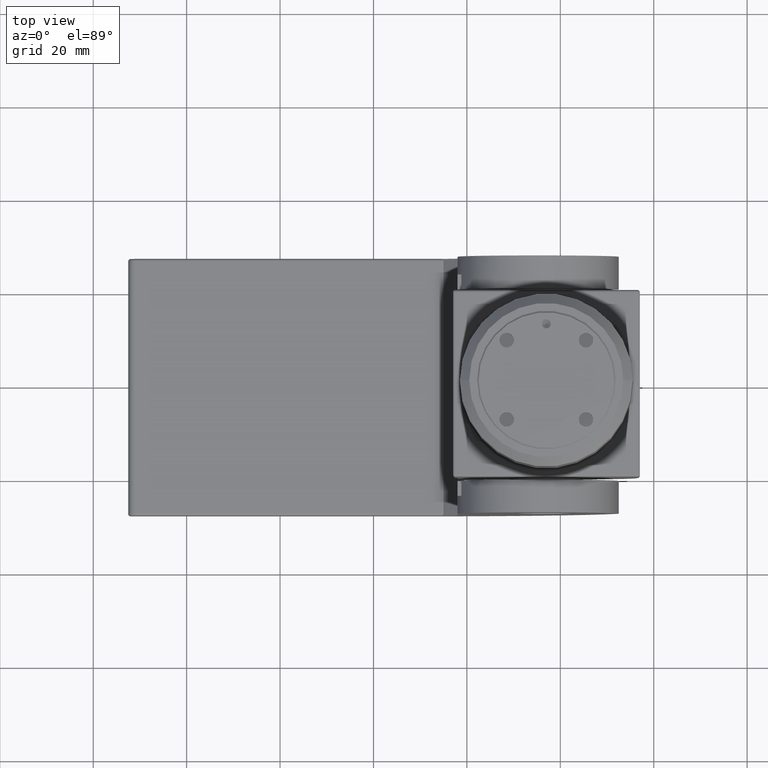
[diagram: clean part render]
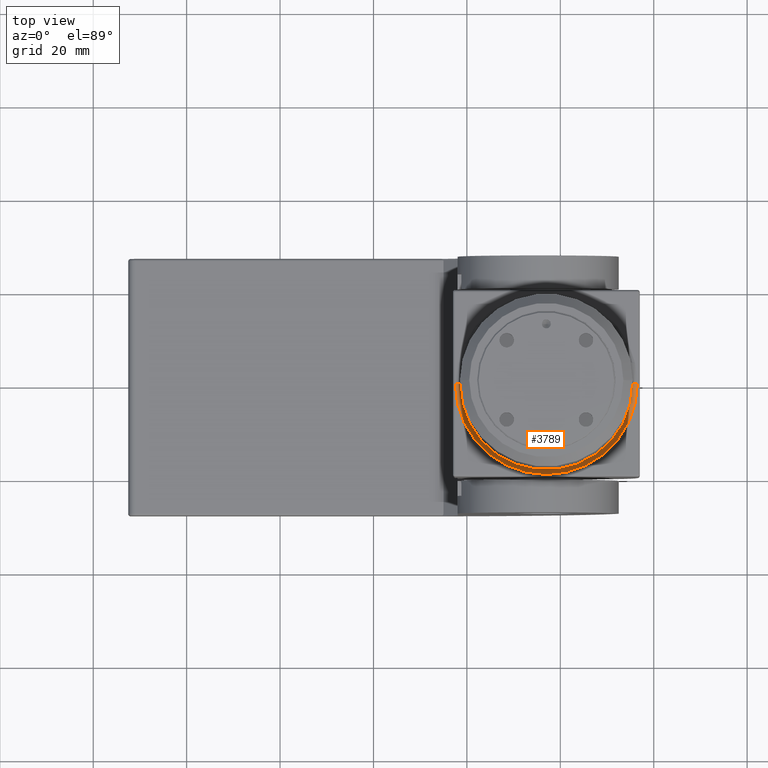
[diagram: same view with one face highlighted and labeled with its STEP entity id]
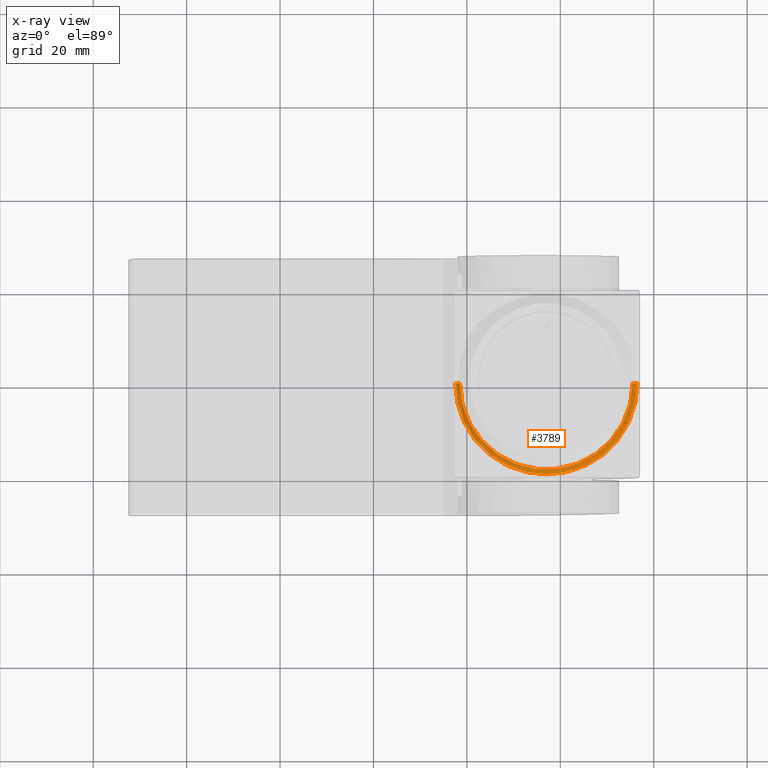
[diagram: x-ray of the same camera — body ghosted, the highlighted face saturated]
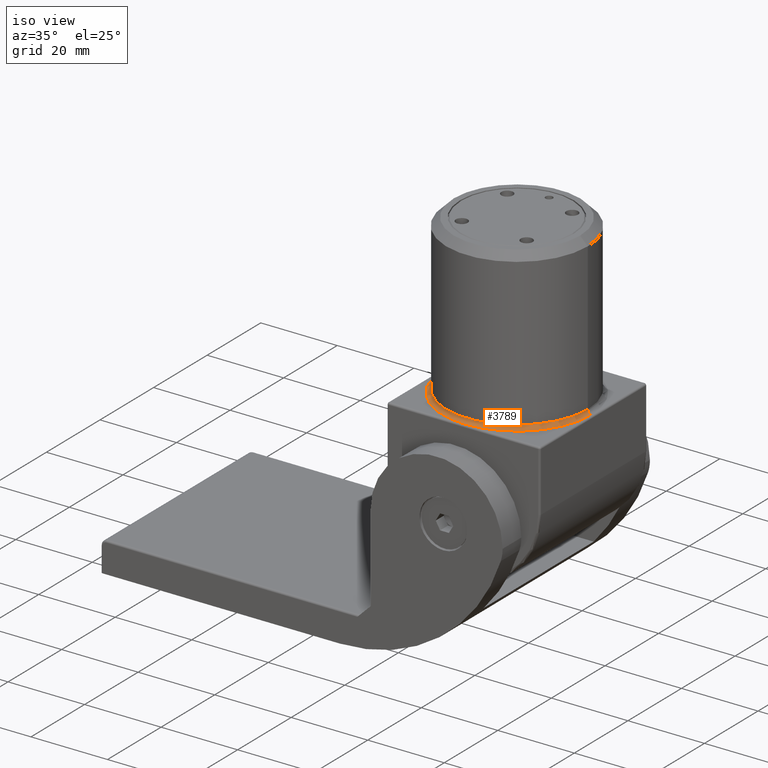
[diagram: same view with one face highlighted and labeled with its STEP entity id]
A machine part, top view. The second image highlights one B-rep face of the part: STEP entity #3789.
The next image is the same camera in x-ray: the body ghosted, the highlighted face saturated — about 0% of this face is hidden behind the body in this view.
A second angle (iso view) of the same face is appended — the face is thin or edge-on in the first view.
In plain terms, the highlighted toroidal blend (fillet) surface has major radius 19.5 mm and minor (blend) radius 1 mm.
Its self-contained STEP definition (entity closure, byte-faithful):
#21 = CARTESIAN_POINT ( 'NONE',  ( 0.000000000000000000, 0.000000000000000000, 0.000000000000000000 ) ) ;
#508 = CIRCLE ( 'NONE', #1918, 19.50000000000000000 ) ;
#533 = ORIENTED_EDGE ( 'NONE', *, *, #12631, .F. ) ;
#781 = CIRCLE ( 'NONE', #16722, 1.000000000000000888 ) ;
#879 = VERTEX_POINT ( 'NONE', #17901 ) ;
#926 = FACE_OUTER_BOUND ( 'NONE', #6901, .T. ) ;
#1873 = AXIS2_PLACEMENT_3D ( 'NONE', #20569, #22290, #20497 ) ;
#1918 = AXIS2_PLACEMENT_3D ( 'NONE', #21188, #2713, #7338 ) ;
#2034 = DIRECTION ( 'NONE',  ( 0.000000000000000000, 0.000000000000000000, -1.000000000000000000 ) ) ;
#2282 = VERTEX_POINT ( 'NONE', #8896 ) ;
#2337 = VERTEX_POINT ( 'NONE', #12582 ) ;
#2713 = DIRECTION ( 'NONE',  ( 0.000000000000000000, 0.000000000000000000, -1.000000000000000000 ) ) ;
#3789 = ADVANCED_FACE ( 'NONE', ( #926 ), #14163, .F. ) ;
#3926 = CARTESIAN_POINT ( 'NONE',  ( 19.50000000000000000, 2.388061258337338939E-15, 1.000000000000000888 ) ) ;
#4155 = ORIENTED_EDGE ( 'NONE', *, *, #21130, .F. ) ;
#6587 = VERTEX_POINT ( 'NONE', #20341 ) ;
#6742 = AXIS2_PLACEMENT_3D ( 'NONE', #21, #2034, #20736 ) ;
#6764 = CARTESIAN_POINT ( 'NONE',  ( 0.000000000000000000, 0.000000000000000000, 1.000000000000000888 ) ) ;
#6901 = EDGE_LOOP ( 'NONE', ( #4155, #14949, #11995, #13554, #533 ) ) ;
#7338 = DIRECTION ( 'NONE',  ( -1.000000000000000000, 0.000000000000000000, 0.000000000000000000 ) ) ;
#7959 = CARTESIAN_POINT ( 'NONE',  ( -19.50000000000000000, 0.000000000000000000, 1.000000000000000888 ) ) ;
#8261 = CIRCLE ( 'NONE', #1873, 18.50000000000000000 ) ;
#8896 = CARTESIAN_POINT ( 'NONE',  ( -19.50000000000000000, 0.000000000000000000, 0.000000000000000000 ) ) ;
#9915 = CIRCLE ( 'NONE', #10476, 1.000000000000000000 ) ;
#10231 = EDGE_CURVE ( 'NONE', #2282, #6587, #9915, .T. ) ;
#10476 = AXIS2_PLACEMENT_3D ( 'NONE', #7959, #13301, #14823 ) ;
#11944 = DIRECTION ( 'NONE',  ( -1.000000000000000000, 0.000000000000000000, 0.000000000000000000 ) ) ;
#11995 = ORIENTED_EDGE ( 'NONE', *, *, #18556, .F. ) ;
#12582 = CARTESIAN_POINT ( 'NONE',  ( 19.50000000000000355, 0.000000000000000000, 0.000000000000000000 ) ) ;
#12631 = EDGE_CURVE ( 'NONE', #879, #2282, #16489, .T. ) ;
#13301 = DIRECTION ( 'NONE',  ( -0.000000000000000000, -1.000000000000000000, -0.000000000000000000 ) ) ;
#13554 = ORIENTED_EDGE ( 'NONE', *, *, #10231, .F. ) ;
#13636 = CARTESIAN_POINT ( 'NONE',  ( 18.50000000000000000, 2.265596578422603396E-15, 1.000000000000000888 ) ) ;
#13700 = DIRECTION ( 'NONE',  ( 0.000000000000000000, 0.000000000000000000, -1.000000000000000000 ) ) ;
#14163 = TOROIDAL_SURFACE ( 'NONE', #16762, 19.50000000000000000, 1.000000000000000000 ) ;
#14823 = DIRECTION ( 'NONE',  ( 0.000000000000000000, 0.000000000000000000, -1.000000000000000000 ) ) ;
#14949 = ORIENTED_EDGE ( 'NONE', *, *, #15800, .T. ) ;
#15800 = EDGE_CURVE ( 'NONE', #2337, #20073, #781, .T. ) ;
#16489 = CIRCLE ( 'NONE', #6742, 19.50000000000000000 ) ;
#16722 = AXIS2_PLACEMENT_3D ( 'NONE', #3926, #17684, #20956 ) ;
#16762 = AXIS2_PLACEMENT_3D ( 'NONE', #6764, #13700, #11944 ) ;
#17684 = DIRECTION ( 'NONE',  ( -1.224646799147353207E-16, 1.000000000000000000, 0.000000000000000000 ) ) ;
#17901 = CARTESIAN_POINT ( 'NONE',  ( 0.000000000000000000, -19.49999999999999645, 0.000000000000000000 ) ) ;
#18556 = EDGE_CURVE ( 'NONE', #6587, #20073, #8261, .T. ) ;
#20073 = VERTEX_POINT ( 'NONE', #13636 ) ;
#20341 = CARTESIAN_POINT ( 'NONE',  ( -18.50000000000000000, 0.000000000000000000, 1.000000000000000888 ) ) ;
#20497 = DIRECTION ( 'NONE',  ( -1.000000000000000000, 0.000000000000000000, 0.000000000000000000 ) ) ;
#20569 = CARTESIAN_POINT ( 'NONE',  ( 0.000000000000000000, 0.000000000000000000, 1.000000000000000888 ) ) ;
#20736 = DIRECTION ( 'NONE',  ( -1.000000000000000000, 0.000000000000000000, 0.000000000000000000 ) ) ;
#20956 = DIRECTION ( 'NONE',  ( -1.000000000000000000, -1.224646799147353454E-16, 0.000000000000000000 ) ) ;
#21130 = EDGE_CURVE ( 'NONE', #2337, #879, #508, .T. ) ;
#21188 = CARTESIAN_POINT ( 'NONE',  ( 0.000000000000000000, 0.000000000000000000, 0.000000000000000000 ) ) ;
#22290 = DIRECTION ( 'NONE',  ( -0.000000000000000000, -0.000000000000000000, 1.000000000000000000 ) ) ;